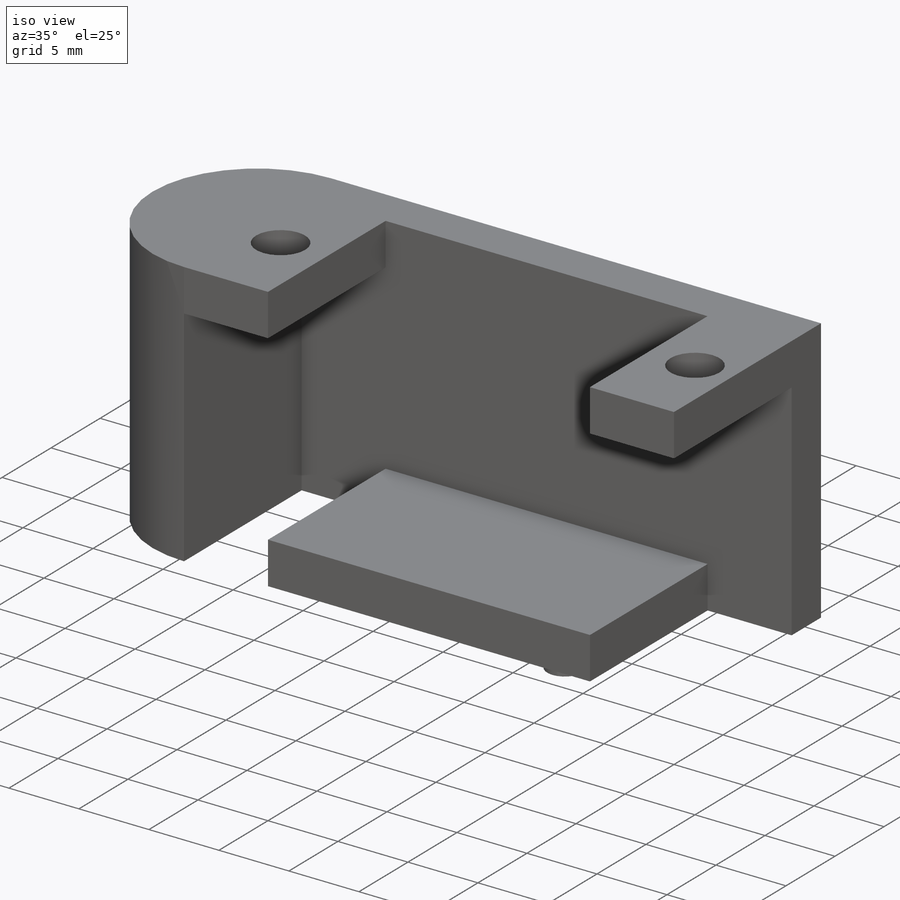
[diagram: iso view]
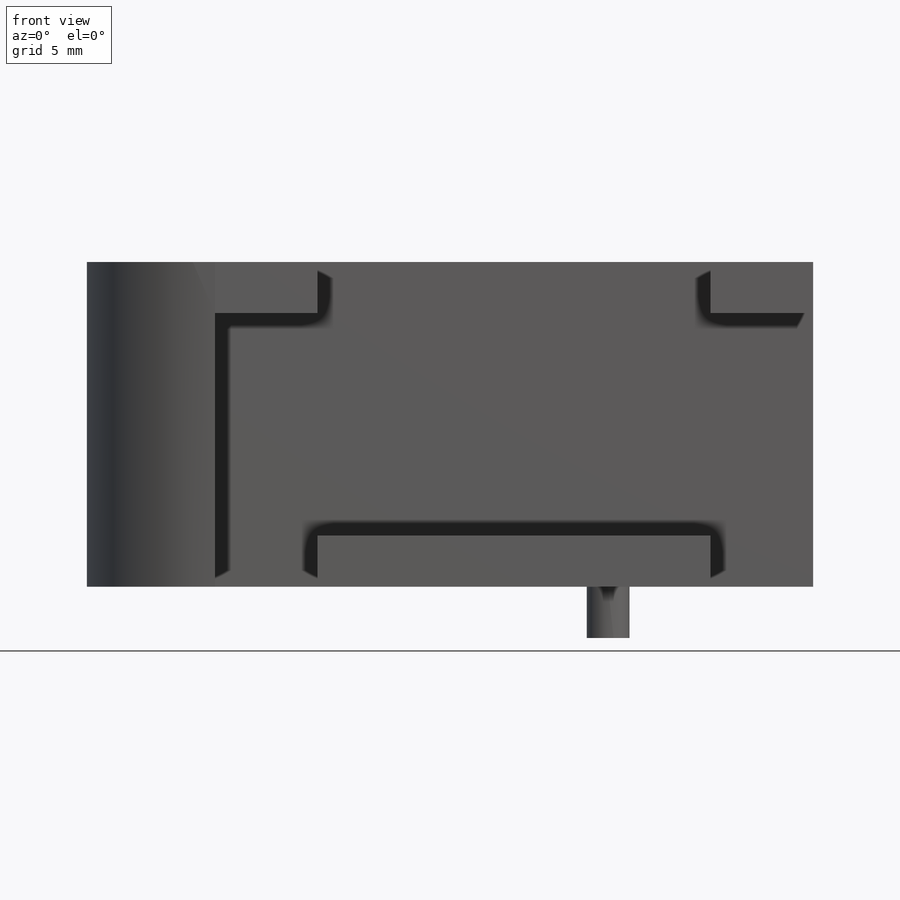
[diagram: front view]
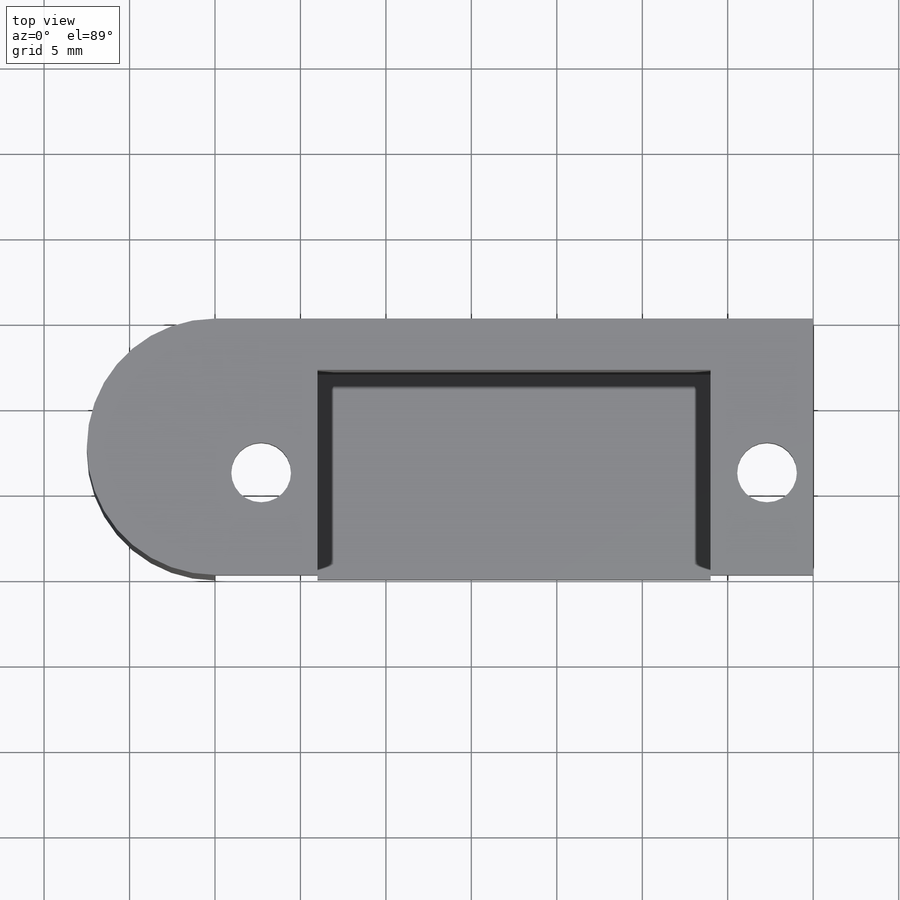
[diagram: top view]
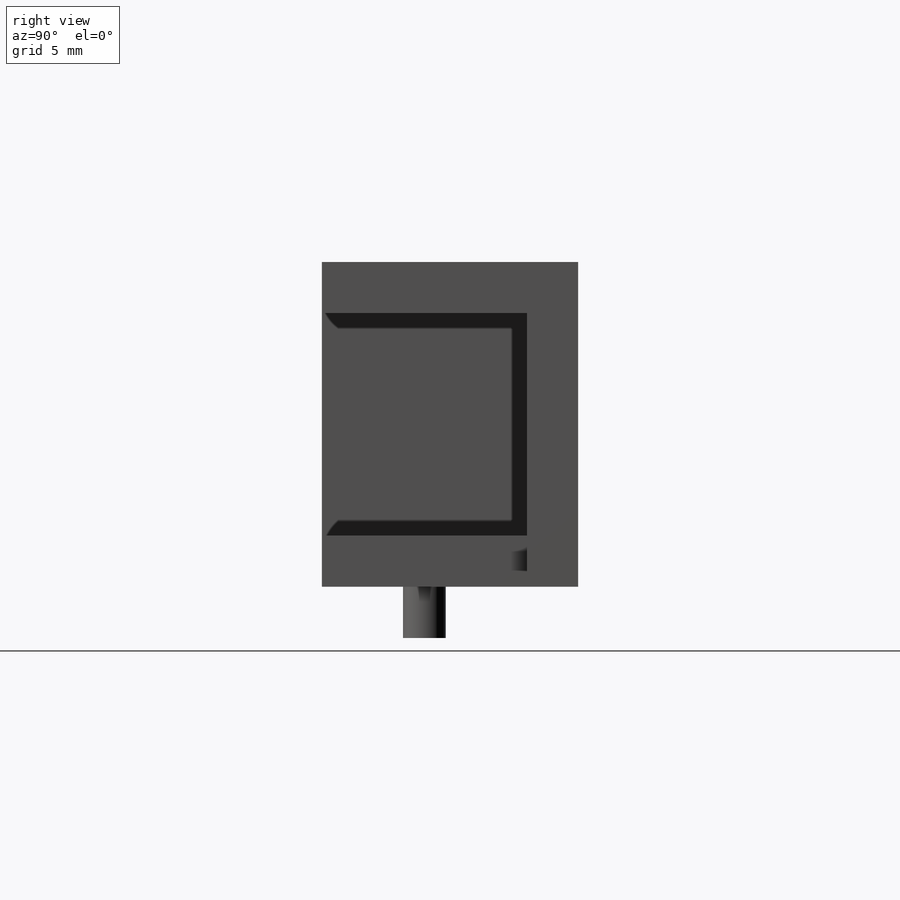
[diagram: right view]
SOLIDWORKS PART (.sldprt)
format: sldprt  version: not decoded by parser v0  size: 208,384 bytes
history: native  units: mm
features: sketch x4, plane x3, extrude x2, cut_extrude x2, material x1 (+10 scaffold rows collapsed)
feature tree (22):
  scaffold x10  (default folders/planes/origin — collapsed)
  material  "Matériau <non spécifié>"
  plane  "Plan de face"
  plane  "Plan de dessus"
  plane  "Plan de droite"
  sketch  "Esquisse1"  dims[D1=35.0mm D2=15.0mm]
  extrude  "Boss.-Extru.1"  Depth=19mm
  sketch  "Esquisse3"  dims[D1=23.0mm D2=6.0mm D3=6.0mm D4=3.0mm D5=3.0mm D6=3.0mm D7=3.0mm D8=23.0mm D9=6.0mm]
  cut_extrude  "Enlèv. mat.-Extru.2"  Depth=12mm
  sketch  "Esquisse4"  dims[c1.D1=~2.724884mm c1.D2=~1.93297mm c1.D3=3.5mm c1.D4=3.5mm c1.D5=3.5mm c1.D6=3.5mm c2.D1=6.0mm c2.D2=6.0mm c2.D5=3.3mm c2.D6=3.3mm]
  cut_extrude  "Enlèv. mat.-Extru.3"  Depth=12mm
  sketch  "Esquisse5"  dims[c1.D1=2.5mm c1.D2=2.5mm c1.D3=2.5mm c2.D2=6.0mm c2.D3=6.0mm]
  extrude  "Boss.-Extru.2"  Depth=3mm
decode coverage: 8 of 8 modeling features carry decoded parameters
note: ~ marks probable driven/reference dimensions
note: suppression state not decoded; provenance and decode notes live in map.json
